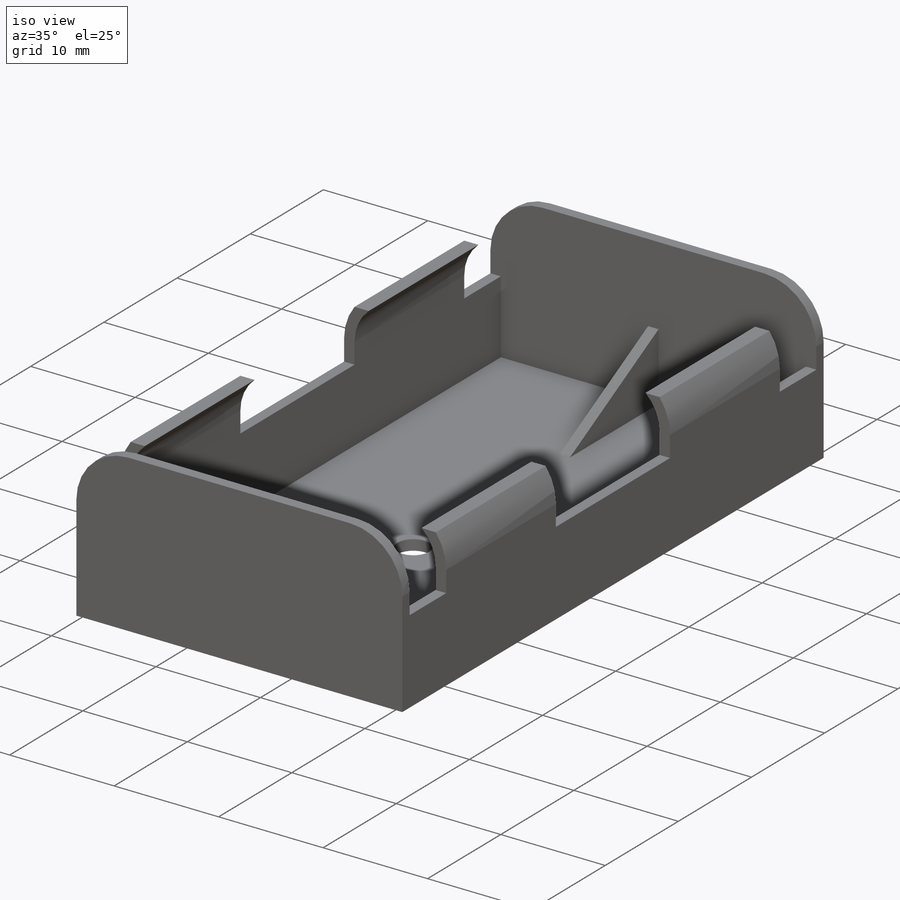
[diagram: iso view]
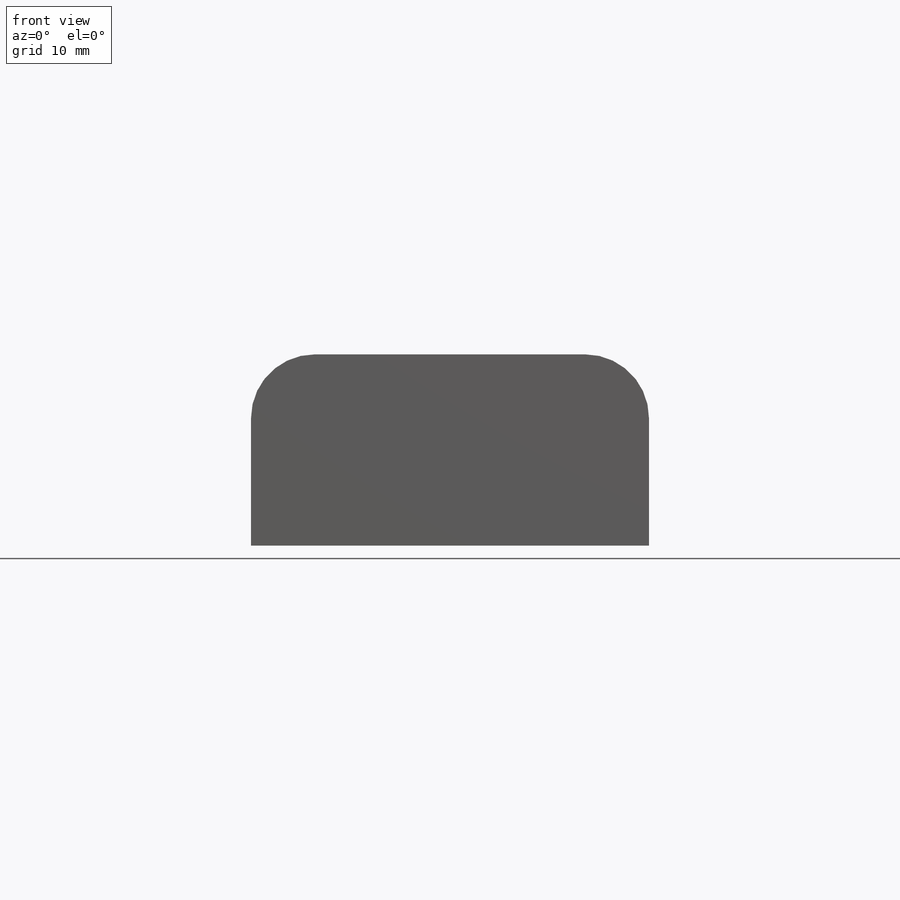
[diagram: front view]
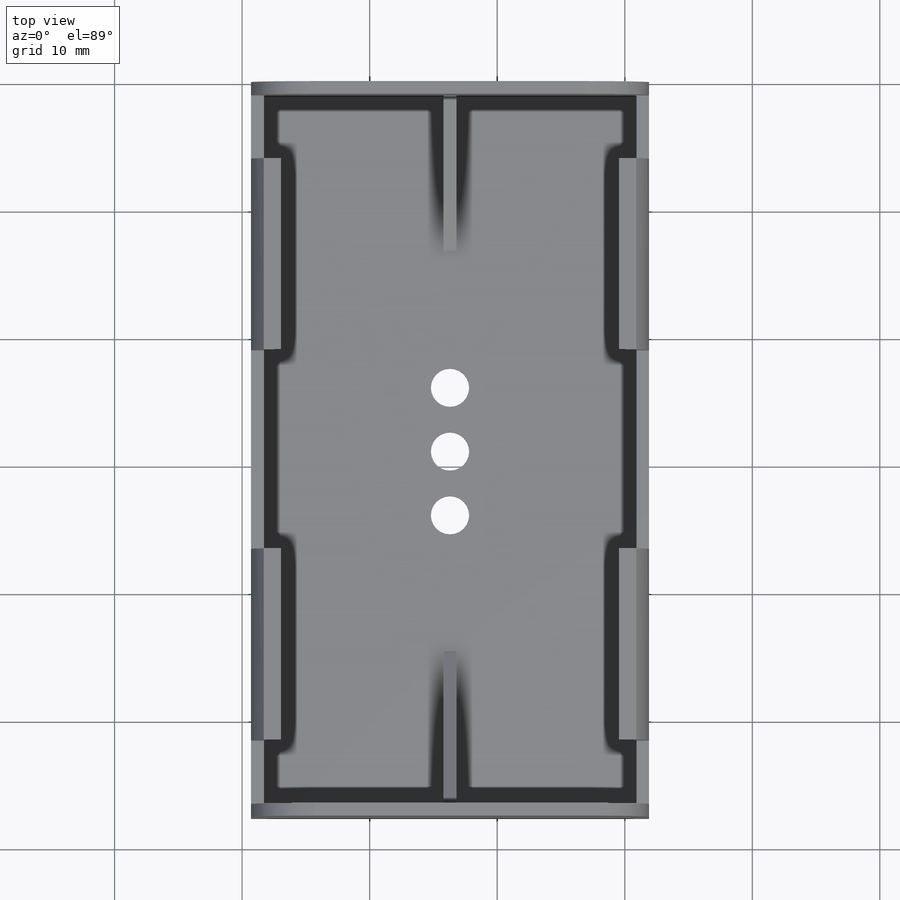
[diagram: top view]
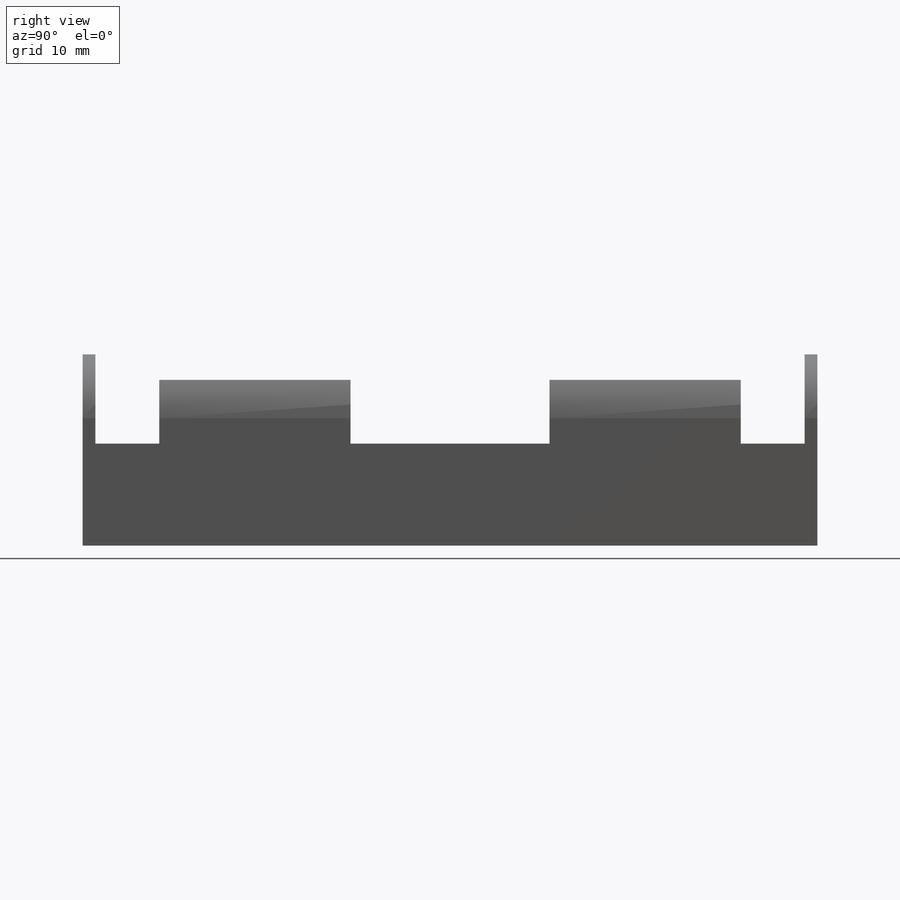
[diagram: right view]
SOLIDWORKS PART (.sldprt)
format: sldprt  version: not decoded by parser v0  size: 183,296 bytes
history: native  units: mm
features: sketch x4, extrude x2, cut_extrude x2, material x1, fillet x1, shell x1, plane x1 (+15 scaffold rows collapsed)
feature tree (27):
  scaffold x15  (default folders/planes/origin — collapsed)
  material  "Material <not specified>"
  sketch  "Sketch1"  dims[D1=31.2mm D2=15.0mm]
  extrude  "Extrude1"  Depth=57.6mm
  fillet  "Fillet2"  Radius=5mm
  shell  "Shell2"  Thickness=1mm
  sketch  "Sketch2"  dims[D1=8.0mm D2=5.0mm D3=5.0mm D4=15.0mm D5=15.0mm D6=5.0mm]
  cut_extrude  "Cut-Extrude1"  [1 undecoded]
  plane  "Plane1"
  sketch  "Sketch3"  dims[D1=8.0mm D2=15.0mm]
  extrude  "Extrude2"  Depth=0.5mm
  sketch  "Sketch4"  dims[D3=3.0mm D4=3.0mm D5=3.0mm D1=5.0mm D2=5.0mm]
  cut_extrude  "Cut-Extrude2"  [1 undecoded]
decode coverage: 8 of 10 modeling features carry decoded parameters
note: 2 parameter values undecoded
note: suppression state not decoded; provenance and decode notes live in map.json
